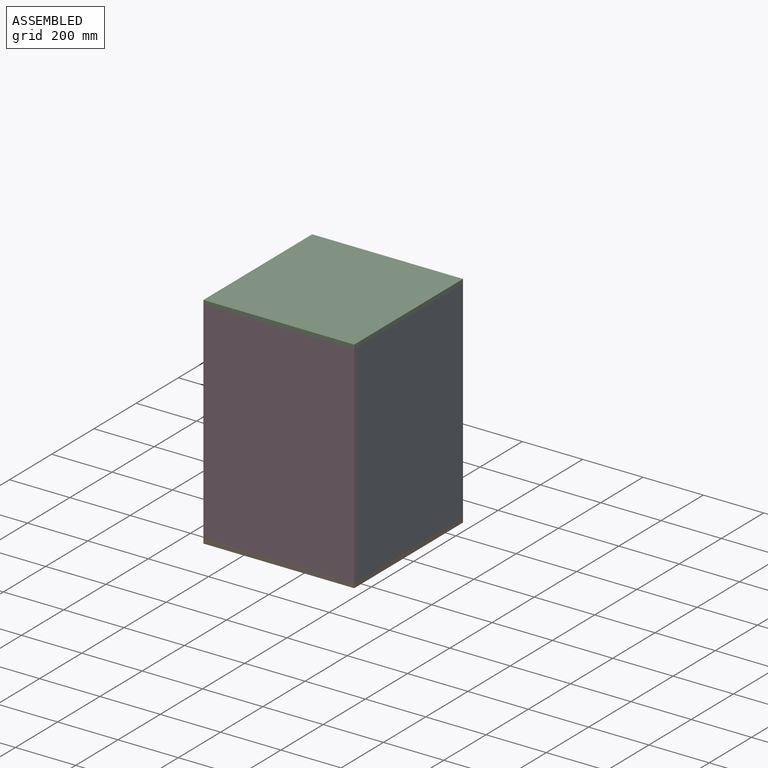
[diagram: assembled view]
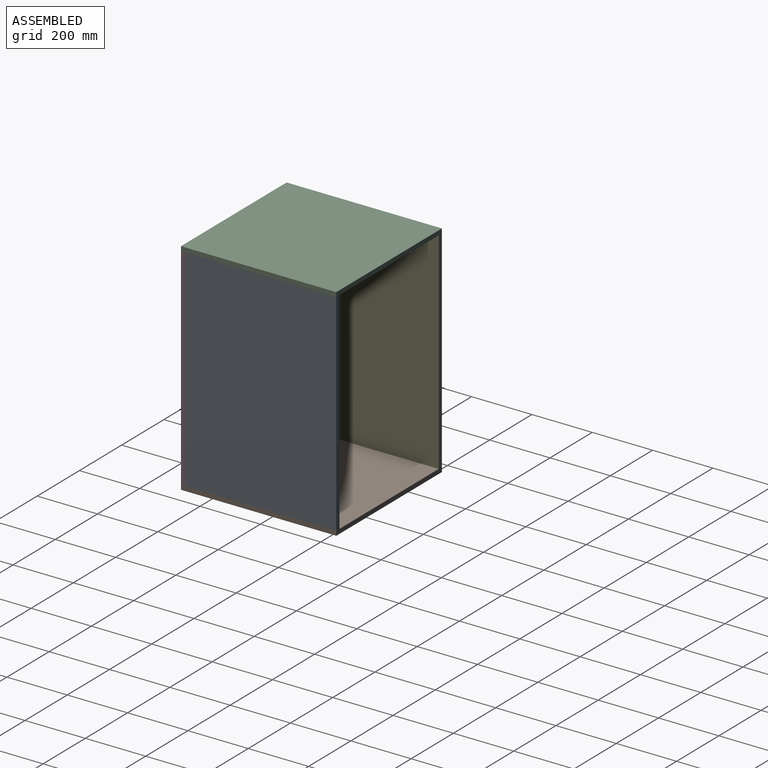
[diagram: assembled view, second angle]
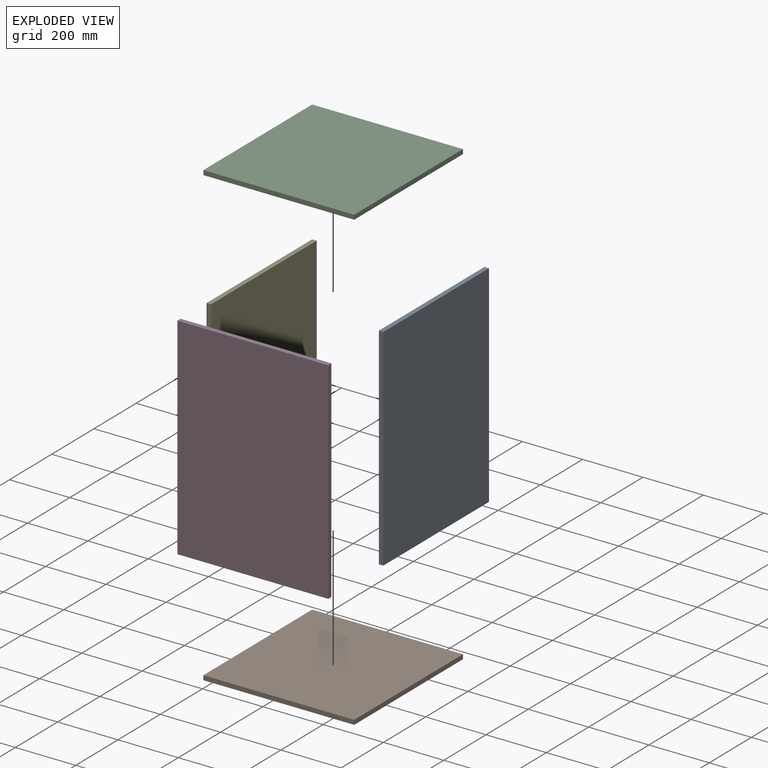
[diagram: exploded view]
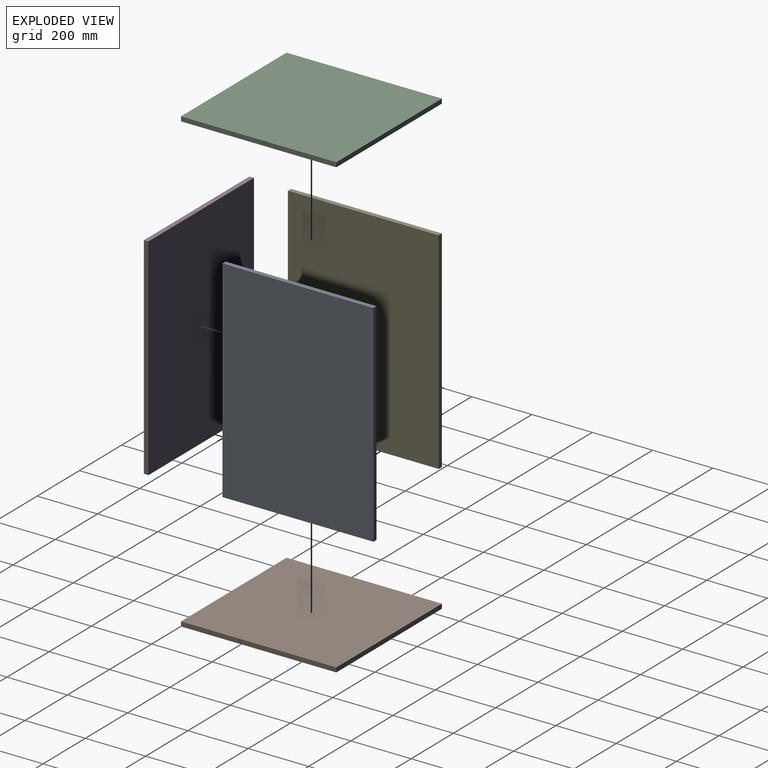
[diagram: exploded view, second angle]
ASSEMBLY  parts=5 mates=12
PART A: 6 faces, bbox 500x700x15 mm
  f0: plane 700x15mm, normal (-1,0,0), area 10500mm2, adj f1,f3,f4,f5
  f1: plane 500x15mm, normal (0,-1,0), area 7500mm2, adj f0,f2,f4,f5
  f2: plane 700x15mm, normal (1,0,0), area 10500mm2, adj f1,f3,f4,f5
  f3: plane 500x15mm, normal (0,1,0), area 7500mm2, adj f0,f2,f4,f5
  f4: plane 700x500mm, normal (0,0,1), area 350000mm2, adj f0,f1,f2,f3
  f5: plane 700x500mm, normal (0,0,-1), area 350000mm2, adj f0,f1,f2,f3
PART B: 6 faces, bbox 515x500x15 mm
  f0: plane 500x15mm, normal (-1,0,0), area 7500mm2, adj f1,f3,f4,f5
  f1: plane 515x15mm, normal (0,-1,0), area 7725mm2, adj f0,f2,f4,f5
  f2: plane 500x15mm, normal (1,0,0), area 7500mm2, adj f1,f3,f4,f5
  f3: plane 515x15mm, normal (0,1,0), area 7725mm2, adj f0,f2,f4,f5
  f4: plane 515x500mm, normal (0,0,1), area 257500mm2, adj f0,f1,f2,f3
  f5: plane 515x500mm, normal (0,0,-1), area 257500mm2, adj f0,f1,f2,f3
PART C: same geometry as B
PART D: same geometry as A
PART E: same geometry as A
PLACE A rot(axis=(-0.58,0.58,-0.58),120deg) t=(274.45,734.61,-355.5)mm
PLACE B rot(axis=(0,0,-1),90deg) t=(-210.55,734.61,-1070.5)mm
PLACE C rot(axis=(0,0,-1),90deg) t=(-210.55,734.61,-355.5)mm
PLACE D rot(axis=(1,0,0),90deg) t=(-210.55,234.61,-1055.5)mm
PLACE E rot(axis=(0.58,0.58,0.58),120deg) t=(-210.55,234.61,-1055.5)mm
MATE planar B.f4 <-> D.f1  axis (0,0,1) through (39.45,477.11,-1055.5)mm
MATE planar A.f1 <-> C.f5  axis (0,0,1) through (281.95,484.61,-355.5)mm
MATE planar C.f2 <-> D.f4  axis (0,-1,0) through (39.45,219.61,-348)mm
MATE planar E.f5 <-> B.f1  axis (-1,0,0) through (-210.55,484.61,-705.5)mm
MATE planar D.f3 <-> C.f5  axis (0,0,1) through (39.45,227.11,-355.5)mm
MATE planar E.f3 <-> C.f5  axis (0,0,1) through (-203.05,484.61,-355.5)mm
MATE planar A.f4 <-> C.f3  axis (1,0,0) through (289.45,484.61,-705.5)mm
MATE planar B.f2 <-> D.f4  axis (0,-1,0) through (39.45,219.61,-1063)mm
MATE planar E.f0 <-> D.f5  axis (0,-1,0) through (-203.05,234.61,-705.5)mm
MATE planar A.f2 <-> D.f5  axis (0,-1,0) through (281.95,234.61,-705.5)mm
MATE planar C.f1 <-> E.f5  axis (-1,0,0) through (-210.55,477.11,-348)mm
MATE planar E.f5 <-> D.f0  axis (-1,0,0) through (-210.55,484.61,-705.5)mm
